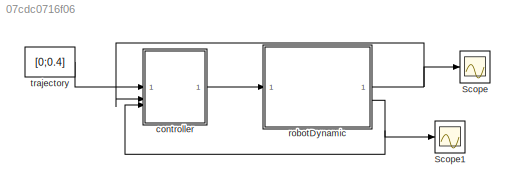
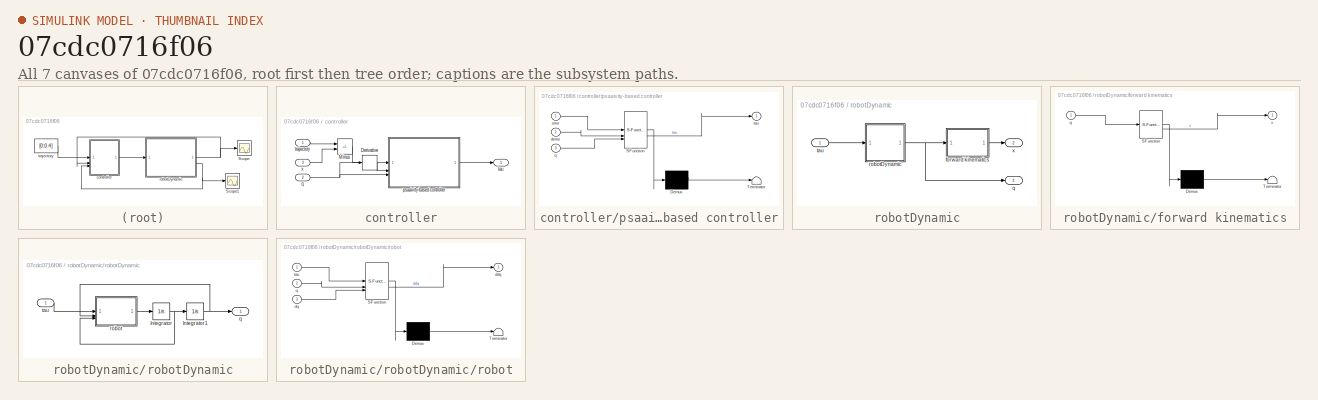
[diagram: thumbnail index - all 7 canvases of the model, root first then tree order]
MODEL slx_07cdc0716f06
KIND model
CONFIG AbsTol = auto
CONFIG EnableMultiTasking = off
CONFIG FixedStep = 0.01
CONFIG MaxStep = auto
CONFIG MinStep = auto
CONFIG RelTol = 1e-3
CONFIG SampleTimeConstraint = Unconstrained
CONFIG SolverName = ode1
CONFIG StartTime = 0.0
CONFIG StopTime = 10
BLOCK [Scope] Scope
  Floating = off
  NumInputPorts = 1
  ScopeSpecificationString = Simulink.scopes.TimeScopeBlockCfg('CurrentConfiguration', extmgr.ConfigurationSet(extmgr.Configuration('Core','General UI',true),extmgr.Configuration('Core','Source UI',true),extmgr.Configuration('Sources','WiredSimulink',true),extmgr.Configuration('Visuals','Time Domain',true,'SerializedDisplays',{struct('MinYLimReal','-2.2764','MaxYLimReal','3.03416','YLabelReal','','MinYLimMag','0.00000','MaxYL...<+1471ch>
BLOCK [Scope] Scope1
  Floating = off
  NumInputPorts = 1
  ScopeSpecificationString = Simulink.scopes.TimeScopeBlockCfg('CurrentConfiguration', extmgr.ConfigurationSet(extmgr.Configuration('Core','General UI',true),extmgr.Configuration('Core','Source UI',true),extmgr.Configuration('Sources','WiredSimulink',true,'DataLoggingVariableName','ScopeData1'),extmgr.Configuration('Visuals','Time Domain',true,'SerializedDisplays',{struct('MinYLimReal','-0.33563','MaxYLimReal','0.48174','YLab...<+1483ch>
BLOCK [SubSystem] controller
BLOCK [Derivative] controller/Derivative
BLOCK [Sum] controller/Minus
  IconShape = rectangular
  Inputs = +-
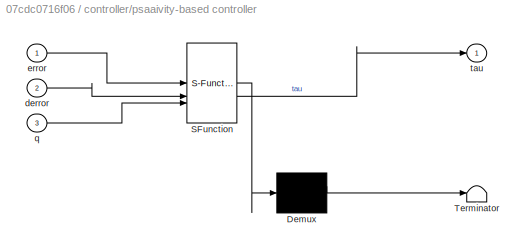
BLOCK [SubSystem] controller/psaaivity-based controller
  ErrorFcn = Stateflow.Translate.translate
  PermitHierarchicalResolution = ExplicitOnly
  SFBlockType = MATLAB Function
  TreatAsAtomicUnit = on
BLOCK [Demux] controller/psaaivity-based controller/ Demux 
  Outputs = 1
BLOCK [S-Function] controller/psaaivity-based controller/ SFunction 
  EnableBusSupport = on
  FunctionName = sf_sfun
  PortCounts = [3 2]
  SFcnIsStateOwnerBlock = off
  SFunctionDeploymentMode = off
  Tag = Stateflow S-Function 2
BLOCK [Terminator] controller/psaaivity-based controller/ Terminator 
BLOCK [Inport] controller/psaaivity-based controller/derror
  Port = 2
BLOCK [Inport] controller/psaaivity-based controller/error
BLOCK [Inport] controller/psaaivity-based controller/q
  Port = 3
BLOCK [Outport] controller/psaaivity-based controller/tau
BLOCK [Inport] controller/q
  Port = 2
BLOCK [Outport] controller/tau
BLOCK [Inport] controller/trajectory
BLOCK [Inport] controller/x
  Port = 3
BLOCK [SubSystem] robotDynamic
BLOCK [SubSystem] robotDynamic/forward kinematics
  ErrorFcn = Stateflow.Translate.translate
  PermitHierarchicalResolution = ExplicitOnly
  SFBlockType = MATLAB Function
  TreatAsAtomicUnit = on
BLOCK [Demux] robotDynamic/forward kinematics/ Demux 
  Outputs = 1
BLOCK [S-Function] robotDynamic/forward kinematics/ SFunction 
  EnableBusSupport = on
  FunctionName = sf_sfun
  PortCounts = [1 2]
  SFcnIsStateOwnerBlock = off
  SFunctionDeploymentMode = off
  Tag = Stateflow S-Function 3
BLOCK [Terminator] robotDynamic/forward kinematics/ Terminator 
BLOCK [Inport] robotDynamic/forward kinematics/q
BLOCK [Outport] robotDynamic/forward kinematics/x
BLOCK [Outport] robotDynamic/q
BLOCK [SubSystem] robotDynamic/robotDynamic
BLOCK [Integrator] robotDynamic/robotDynamic/Integrator
BLOCK [Integrator] robotDynamic/robotDynamic/Integrator1
BLOCK [Outport] robotDynamic/robotDynamic/q
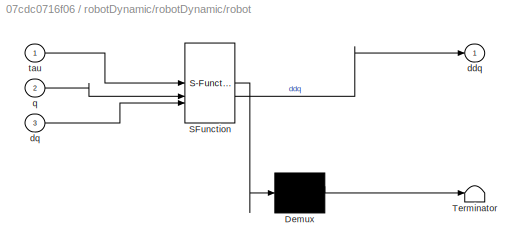
BLOCK [SubSystem] robotDynamic/robotDynamic/robot
  ErrorFcn = Stateflow.Translate.translate
  PermitHierarchicalResolution = ExplicitOnly
  SFBlockType = MATLAB Function
  TreatAsAtomicUnit = on
BLOCK [Demux] robotDynamic/robotDynamic/robot/ Demux 
  Outputs = 1
BLOCK [S-Function] robotDynamic/robotDynamic/robot/ SFunction 
  EnableBusSupport = on
  FunctionName = sf_sfun
  PortCounts = [3 2]
  SFcnIsStateOwnerBlock = off
  SFunctionDeploymentMode = off
  Tag = Stateflow S-Function 1
BLOCK [Terminator] robotDynamic/robotDynamic/robot/ Terminator 
BLOCK [Outport] robotDynamic/robotDynamic/robot/ddq
BLOCK [Inport] robotDynamic/robotDynamic/robot/dq
  Port = 3
BLOCK [Inport] robotDynamic/robotDynamic/robot/q
  Port = 2
BLOCK [Inport] robotDynamic/robotDynamic/robot/tau
BLOCK [Inport] robotDynamic/robotDynamic/tau
BLOCK [Inport] robotDynamic/tau
BLOCK [Outport] robotDynamic/x
  Port = 2
BLOCK [Constant] trajectory
  Value = [0;0.4]
LINE controller/Derivative:1 -> controller/psaaivity-based controller:2
LINE controller/Minus:1 -> controller/psaaivity-based controller:1
LINE controller/psaaivity-based controller:1 -> controller/tau:1
NET controller/q:1 -> controller/Derivative:1, controller/psaaivity-based controller:3
LINE controller/trajectory:1 -> controller/Minus:1
LINE controller/x:1 -> controller/Minus:2
LINE controller:1 -> robotDynamic:1
LINE robotDynamic/forward kinematics:1 -> robotDynamic/x:1
NET robotDynamic/robotDynamic/Integrator1:1 -> robotDynamic/robotDynamic/q:1, robotDynamic/robotDynamic/robot:2
NET robotDynamic/robotDynamic/Integrator:1 -> robotDynamic/robotDynamic/Integrator1:1, robotDynamic/robotDynamic/robot:3
LINE robotDynamic/robotDynamic/robot:1 -> robotDynamic/robotDynamic/Integrator:1
LINE robotDynamic/robotDynamic/tau:1 -> robotDynamic/robotDynamic/robot:1
NET robotDynamic/robotDynamic:1 -> robotDynamic/forward kinematics:1, robotDynamic/q:1
LINE robotDynamic/tau:1 -> robotDynamic/robotDynamic:1
NET robotDynamic:1 -> Scope:1, controller:2
NET robotDynamic:2 -> Scope1:1, controller:3
LINE trajectory:1 -> controller:1
note: NET lines group one-source signal fan-out (src -> all destinations, sorted); 1:1 wires keep LINE
CHART robotDynamic/robotDynamic/robot states=1 transitions=1
  STATE_LABEL 'eML_blk_kernel()'
  STATE_LABEL 'SCRIPT:\nfunction ddq = robot(tau, q, dq)\n\nI1 = 0.05;\nm1 = 1.5;\nlg1 = 0.2;\nlr1 = lg1 / 2;\n\nI2 = 0.01;\nm2 = 0.5;\nlg2 = 0.2;\nlr2 = lg2 / 2;\n\ng = 9.8;\n\nM = [m1 * lr1^2 + I1 + m2 * lg1^2, m2 * lg1 * lr2 * cos(q(2));\n        m2 * lg1 * lr2 * cos(q(2)), m2 * lr2^2 + I2];\n\nV = [-m2 * lg1 * lr2 * dq(2)^2 * sin(q(2));\n    m2 * lg1 * lr2 * dq(1)^2 * sin(q(2))];\n\nG = [m1 * g * lr1 * cos(q(1)) + m2 * g * lg1 *...<+82ch>'
CHART controller/psaaivity-based controller states=1 transitions=1
  STATE_LABEL 'eML_blk_kernel()'
  STATE_LABEL 'SCRIPT:\nfunction tau = controller(error, derror, q)\n\nlg1 = 0.2;\nlg2 = 0.2;\n\nkp = [0, 0;\n       0, 0];\n\n\nkd = [0, 0;\n        0, 0];\n\njacobian = [-lg1 * sin(q(1)) - lg2 * sin(q(1) + q(2)), -lg2 * sin(q(1) + q(2));\n    lg1 * cos(q(1)) + lg2 * cos(q(1) + q(2)), lg2 * cos(q(1) + q(2))];\n\n\ntau = kp * transpose(jacobian) * error - kd * derror;\nend'
CHART robotDynamic/forward kinematics states=1 transitions=1
  STATE_LABEL 'eML_blk_kernel()'
  STATE_LABEL 'SCRIPT:\nfunction x = kinematics(q)\n\nlg1 = 0.2;\nlg2 = 0.2;\nx = [0;\n    0];\nx(1) = lg1 * cos(q(1)) + lg2 * cos(q(1) + q(2));\nx(2) = lg1 * sin(q(1)) + lg2 * sin(q(1) + q(2));\n\nend'
CHART  states=0 transitions=0
CHART  states=0 transitions=0
CHART  states=0 transitions=0
